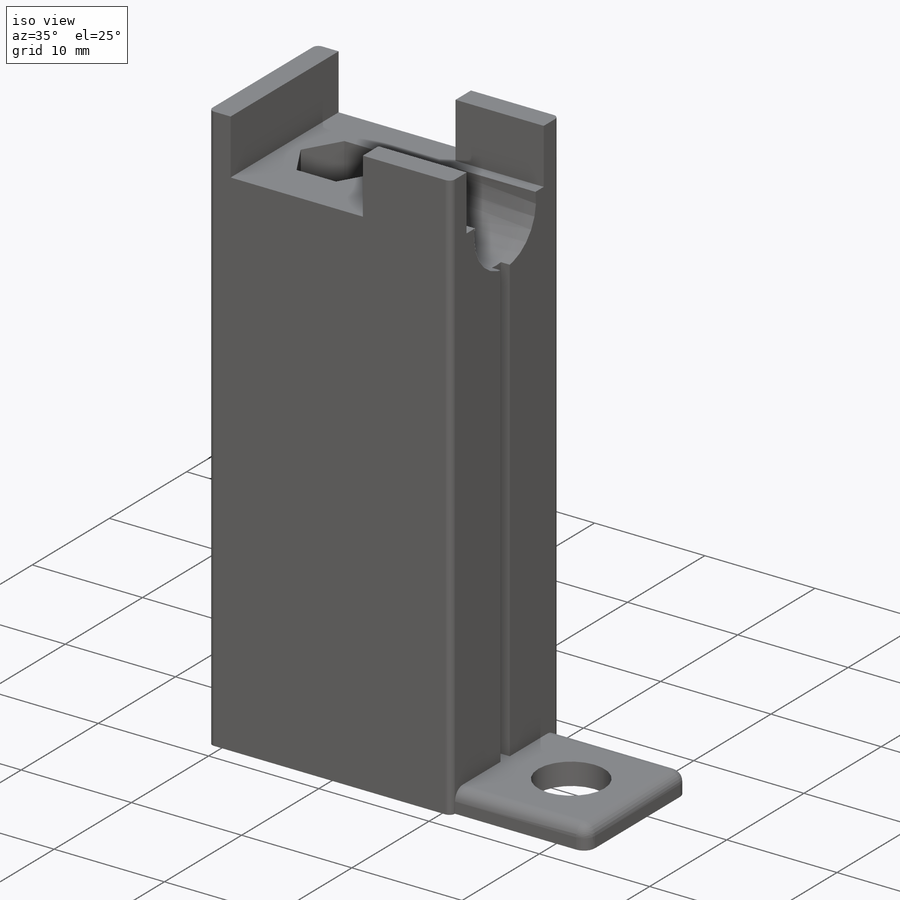
[diagram: iso view]
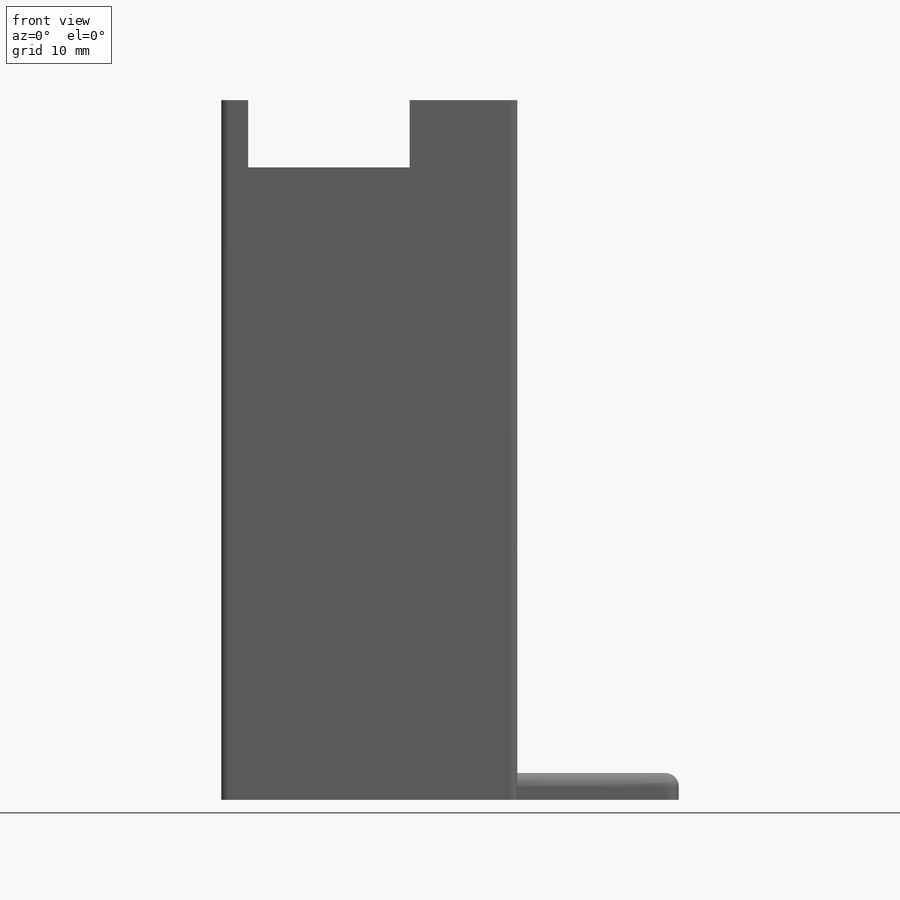
[diagram: front view]
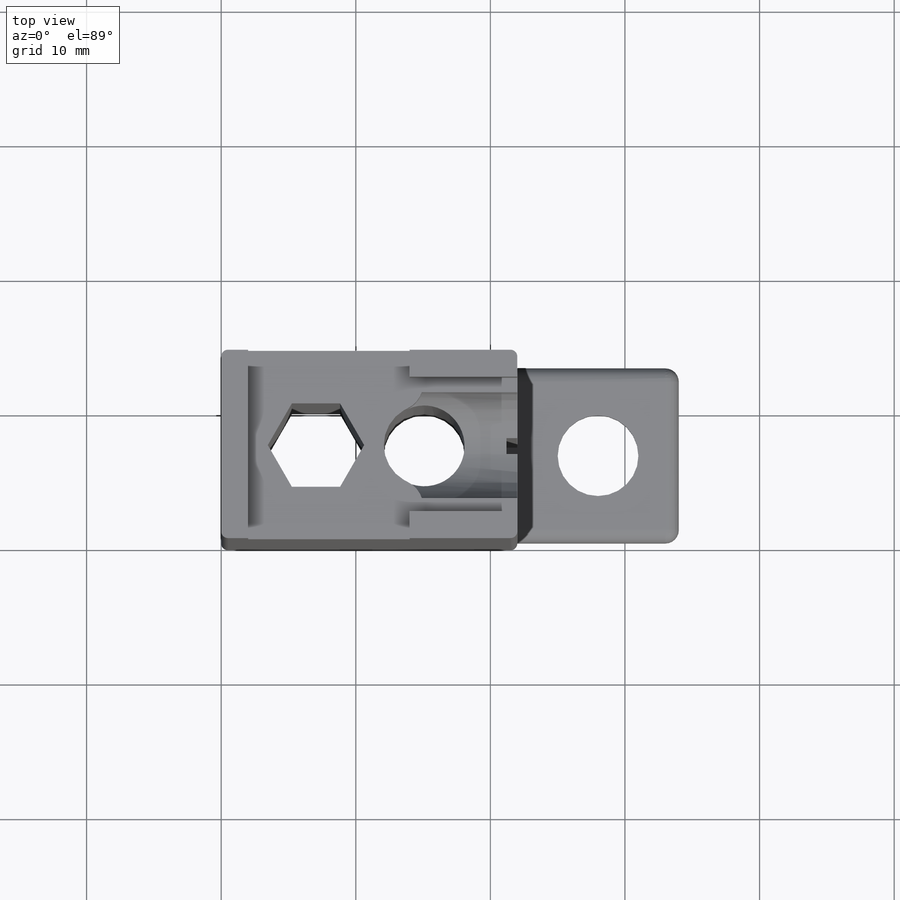
[diagram: top view]
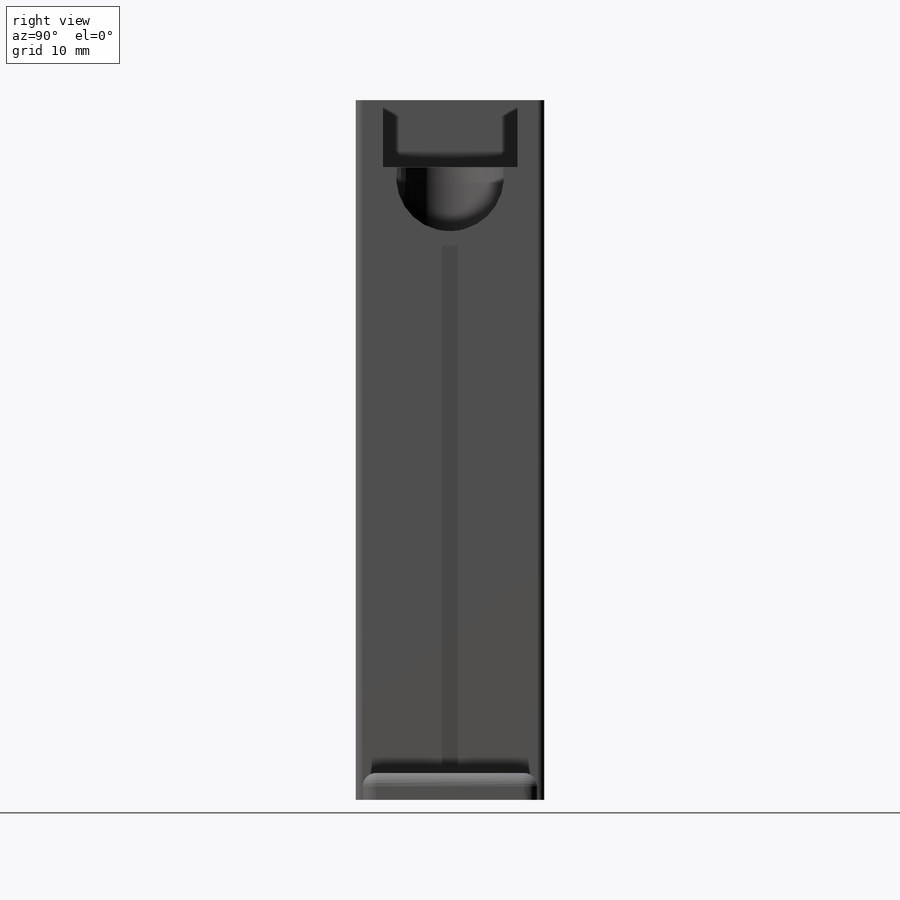
[diagram: right view]
SOLIDWORKS PART (.sldprt)
format: sldprt  version: not decoded by parser v0  size: 460,800 bytes
history: native  units: mm
features: sketch x8, cut_extrude x5, extrude x3, fillet x3, material x1 (+12 scaffold rows collapsed)
feature tree (32):
  scaffold x12  (default folders/planes/origin — collapsed)
  material  "Material <not specified>"
  sketch  "Sketch1"  dims[D1=22.0mm D2=14.0mm]
  extrude  "Boss-Extrude1"  Depth=47mm
  sketch  "Sketch2"  dims[c1.D1=2.0mm c1.D2=2.0mm c1.D3=2.0mm c2.D1=2.0mm c2.D3=8.0mm c2.D4=8.0mm c2.D5=2.0mm]
  extrude  "Boss-Extrude2"  Depth=5mm
  sketch  "Sketch3"  dims[c1.D1=6.5mm c1.D2=6.0mm c1.D3=6.0mm c2.D2=4.0mm c2.D3=~15.242989mm c3.D3=90.0deg c4.D3=5.0mm c4.D4=7.0mm c4.D5=5.0mm c4.D6=5.0mm c4.D7=7.0mm c5.D4=7.0mm c5.D5=1.5mm c5.D6=1.5mm c5.D7=7.0mm c5.D8=2.0mm c5.D9=1.5mm c5.D2=5.0mm c6.D7=12.0mm c6.D1=6.2mm c6.D2=1.5mm c6.D4=4.0mm c7.D2=~5.041452mm c7.D4=~8.041452mm]
  cut_extrude  "Cut-Extrude1"  [1 undecoded]
  sketch  "Sketch4"  dims[c1.D1=1.2mm c1.D2=0.6mm c2.D1=1.2mm c2.D2=0.6mm]
  cut_extrude  "Cut-Extrude2"  Depth=0.8mm
  sketch  "Sketch5"  dims[D1=8.0mm D2=39.25mm D3=5.75mm]
  cut_extrude  "Cut-Extrude3"  Depth=7mm
  sketch  "Sketch7"  dims[c1.D1=20.0mm c1.D2=~20.029426mm c2.D2=90.0deg c3.D2=1.0mm]
  cut_extrude  "Cut-Extrude4"  Depth=1mm
  fillet  "Fillet1"  Radius=2mm
  fillet  "Fillet2"  Radius=0.5mm
  sketch  "Sketch8"  dims[c1.D1=2.0mm c1.D2=2.0mm c2.D1=2.0mm]
  extrude  "Boss-Extrude3"  Depth=12mm
  fillet  "Fillet4"  Radius=1mm
  sketch  "Sketch9"  dims[D1=6.0mm D2=6.0mm]
  cut_extrude  "Cut-Extrude5"  [1 undecoded]
decode coverage: 17 of 19 modeling features carry decoded parameters
note: ~ marks probable driven/reference dimensions
note: 2 parameter values undecoded
note: suppression state not decoded; provenance and decode notes live in map.json
